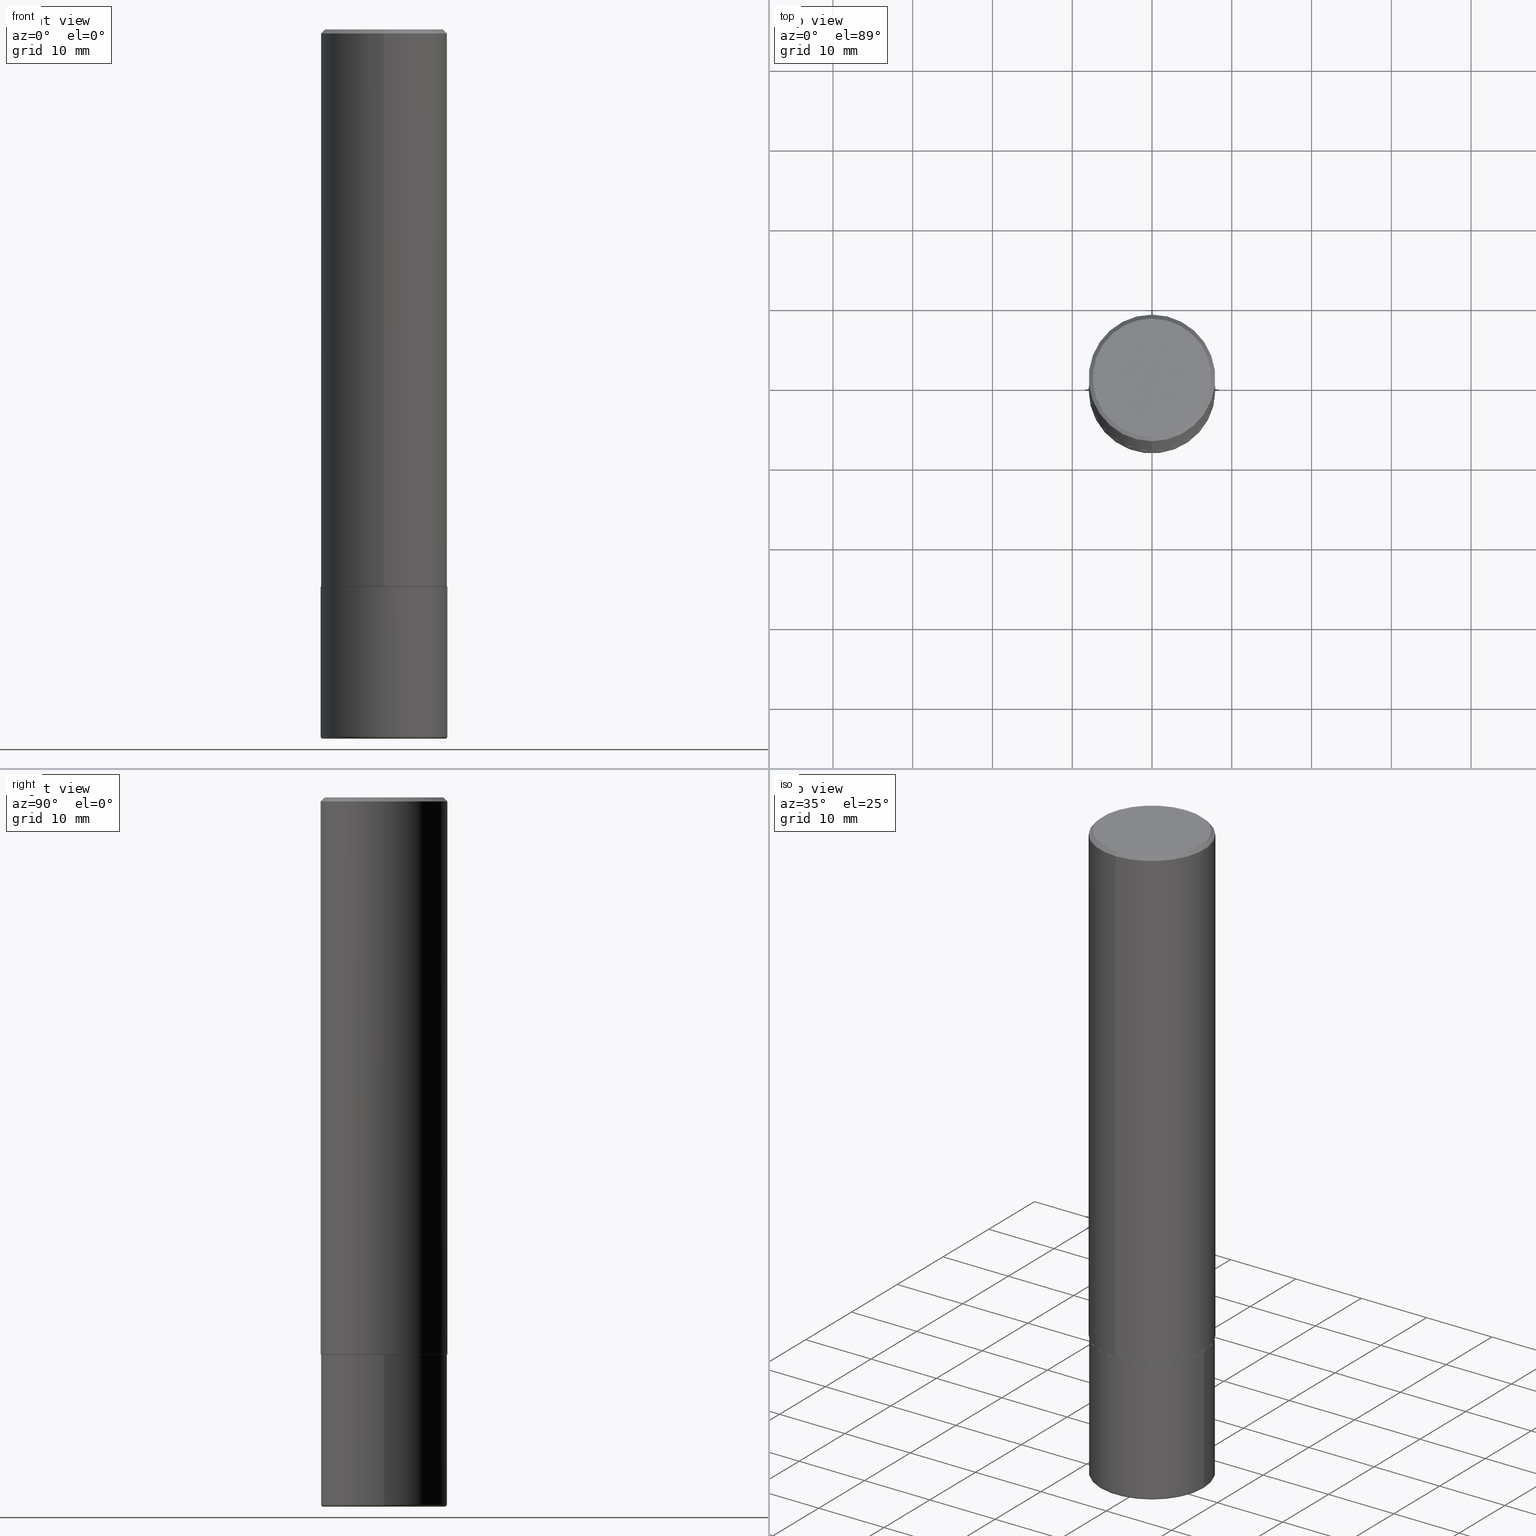
[diagram: canonical four-view strip — front | top / right | iso, engineering-drawing reading convention]
A machine part, canonical four-view strip (front | top / right | iso — engineering-drawing reading convention). The complete STEP part file that produces these views, byte-faithful:
ISO-10303-21;
HEADER;
FILE_DESCRIPTION (( 'STEP AP203' ),
    '1' );
FILE_NAME ('38846.STEP',
    '2024-03-03T16:41:31',
    ( '' ),
    ( '' ),
    'SwSTEP 2.0',
    'SolidWorks 2023',
    '' );
FILE_SCHEMA (( 'CONFIG_CONTROL_DESIGN' ));
ENDSEC;

DATA;
#1 = APPLICATION_CONTEXT ( 'configuration controlled 3d designs of mechanical parts and assemblies' ) ;
#2 = ADVANCED_FACE ( 'NONE', ( #375 ), #371, .F. ) ;
#3 = CARTESIAN_POINT ( 'NONE',  ( 4.889594666967924290E-31, -6.984885851938207279E-17, -0.02000000000000006981 ) ) ;
#4 = EDGE_LOOP ( 'NONE', ( #76, #102, #203, #235 ) ) ;
#5 = DIRECTION ( 'NONE',  ( 6.982962677686265133E-15, 1.000000000000000000, -3.496765431890258103E-15 ) ) ;
#6 = VERTEX_POINT ( 'NONE', #85 ) ;
#7 = AXIS2_PLACEMENT_3D ( 'NONE', #149, #308, #369 ) ;
#8 = ORIENTED_EDGE ( 'NONE', *, *, #227, .F. ) ;
#9 = UNCERTAINTY_MEASURE_WITH_UNIT (LENGTH_MEASURE( 1.000000000000000082E-05 ), #34, 'distance_accuracy_value', 'NONE');
#10 = VERTEX_POINT ( 'NONE', #269 ) ;
#11 = ORIENTED_EDGE ( 'NONE', *, *, #168, .F. ) ;
#12 = COORDINATED_UNIVERSAL_TIME_OFFSET ( 5, 0, .BEHIND. ) ;
#13 = VECTOR ( 'NONE', #257, 39.37007874015748143 ) ;
#14 = ORIENTED_EDGE ( 'NONE', *, *, #144, .F. ) ;
#15 = LOCAL_TIME ( 11, 41, 31.00000000000000000, #207 ) ;
#16 = APPROVAL_DATE_TIME ( #46, #210 ) ;
#17 = PRODUCT_DEFINITION ( 'UNKNOWN', '', #148, #38 ) ;
#18 = FACE_OUTER_BOUND ( 'NONE', #173, .T. ) ;
#19 = APPROVAL_DATE_TIME ( #280, #139 ) ;
#20 = DIRECTION ( 'NONE',  ( -2.445468806185136597E-29, 3.491481338843145583E-15, 1.000000000000000000 ) ) ;
#21 = CALENDAR_DATE ( 2024, 3, 3 ) ;
#22 = DIRECTION ( 'NONE',  ( -6.982962677686266711E-15, -1.000000000000000000, 3.492442925969092226E-15 ) ) ;
#23 = ADVANCED_FACE ( 'NONE', ( #51 ), #306, .T. ) ;
#24 = ADVANCED_FACE ( 'NONE', ( #312 ), #88, .F. ) ;
#25 = DIRECTION ( 'NONE',  ( -6.982962677686266711E-15, -1.000000000000000000, 3.492442925969092620E-15 ) ) ;
#26 = CARTESIAN_POINT ( 'NONE',  ( 2.213340621892779126E-15, 0.3114999999999903957, -2.750000000000000888 ) ) ;
#27 = LINE ( 'NONE', #160, #397 ) ;
#28 = AXIS2_PLACEMENT_3D ( 'NONE', #190, #313, #409 ) ;
#29 = AXIS2_PLACEMENT_3D ( 'NONE', #418, #74, #361 ) ;
#30 = DIRECTION ( 'NONE',  ( -2.444797333483953649E-29, 3.492442925969092226E-15, 1.000000000000000000 ) ) ;
#31 = DIRECTION ( 'NONE',  ( -2.444797333483953649E-29, 3.492442925969092226E-15, 1.000000000000000000 ) ) ;
#32 = CARTESIAN_POINT ( 'NONE',  ( 0.3125000000000000000, -2.182175836776958347E-15, 1.523805242436230075E-29 ) ) ;
#33 = EDGE_CURVE ( 'NONE', #230, #388, #48, .T. ) ;
#34 =( CONVERSION_BASED_UNIT ( 'INCH', #322 ) LENGTH_UNIT ( ) NAMED_UNIT ( #242 ) );
#35 = ORIENTED_EDGE ( 'NONE', *, *, #408, .F. ) ;
#36 = FACE_OUTER_BOUND ( 'NONE', #205, .T. ) ;
#37 = EDGE_LOOP ( 'NONE', ( #138, #415 ) ) ;
#38 = DESIGN_CONTEXT ( 'detailed design', #127, 'design' ) ;
#39 = DIRECTION ( 'NONE',  ( -2.445468806185136597E-29, 3.491481338843145583E-15, 1.000000000000000000 ) ) ;
#40 = EDGE_LOOP ( 'NONE', ( #377, #325, #171, #199 ) ) ;
#41 = CONICAL_SURFACE ( 'NONE', #28, 0.3114999999999999991, 0.7853981633976873100 ) ;
#42 = LOCAL_TIME ( 11, 41, 31.00000000000000000, #344 ) ;
#43 = ORIENTED_EDGE ( 'NONE', *, *, #364, .F. ) ;
#44 = EDGE_LOOP ( 'NONE', ( #366, #78 ) ) ;
#45 = CARTESIAN_POINT ( 'NONE',  ( -2.182175836776958741E-15, -0.3125000000000000555, 1.091388414365341542E-15 ) ) ;
#46 = DATE_AND_TIME ( #251, #15 ) ;
#47 = AXIS2_PLACEMENT_3D ( 'NONE', #61, #315, #354 ) ;
#48 = LINE ( 'NONE', #206, #178 ) ;
#49 = AXIS2_PLACEMENT_3D ( 'NONE', #3, #358, #5 ) ;
#50 = DIRECTION ( 'NONE',  ( 0.000000000000000000, 0.000000000000000000, 1.000000000000000000 ) ) ;
#51 = FACE_OUTER_BOUND ( 'NONE', #40, .T. ) ;
#52 = PERSON_AND_ORGANIZATION_ROLE ( 'design_supplier' ) ;
#53 = ORIENTED_EDGE ( 'NONE', *, *, #260, .T. ) ;
#54 = DIRECTION ( 'NONE',  ( -2.444797333483953649E-29, 3.492442925969092226E-15, 1.000000000000000000 ) ) ;
#55 = EDGE_CURVE ( 'NONE', #360, #362, #197, .T. ) ;
#56 = CALENDAR_DATE ( 2024, 3, 3 ) ;
#57 = LINE ( 'NONE', #45, #381 ) ;
#58 = PERSON_AND_ORGANIZATION ( #329, #305 ) ;
#59 = CIRCLE ( 'NONE', #147, 0.3125000000000002776 ) ;
#60 = CC_DESIGN_SECURITY_CLASSIFICATION ( #133, ( #148 ) ) ;
#61 = CARTESIAN_POINT ( 'NONE',  ( 0.000000000000000000, 0.000000000000000000, 0.000000000000000000 ) ) ;
#62 = PLANE ( 'NONE',  #373 ) ;
#63 = DIRECTION ( 'NONE',  ( -6.982962677686265133E-15, -1.000000000000000000, 3.496765431890258103E-15 ) ) ;
#64 = ORIENTED_EDGE ( 'NONE', *, *, #334, .T. ) ;
#65 = PLANE ( 'NONE',  #91 ) ;
#66 = CARTESIAN_POINT ( 'NONE',  ( 0.000000000000000000, 0.000000000000000000, 0.000000000000000000 ) ) ;
#67 = EDGE_CURVE ( 'NONE', #262, #70, #57, .T. ) ;
#68 = CC_DESIGN_DATE_AND_TIME_ASSIGNMENT ( #156, #370, ( #133 ) ) ;
#69 = CARTESIAN_POINT ( 'NONE',  ( 2.182175836776957558E-15, 0.3124999999999998335, -0.02000000000000116268 ) ) ;
#70 = VERTEX_POINT ( 'NONE', #177 ) ;
#71 = CONICAL_SURFACE ( 'NONE', #258, 0.3124999999999998890, 0.7853981633974469467 ) ;
#72 = LINE ( 'NONE', #324, #417 ) ;
#73 = EDGE_LOOP ( 'NONE', ( #356, #330, #386, #129 ) ) ;
#74 = DIRECTION ( 'NONE',  ( -6.982962677686266711E-15, -1.000000000000000000, 3.491481338843145583E-15 ) ) ;
#75 = ORIENTED_EDGE ( 'NONE', *, *, #55, .F. ) ;
#76 = ORIENTED_EDGE ( 'NONE', *, *, #301, .T. ) ;
#77 = AXIS2_PLACEMENT_3D ( 'NONE', #135, #137, #263 ) ;
#78 = ORIENTED_EDGE ( 'NONE', *, *, #260, .F. ) ;
#79 = CARTESIAN_POINT ( 'NONE',  ( 0.000000000000000000, 0.000000000000000000, 0.000000000000000000 ) ) ;
#80 = APPROVAL_STATUS ( 'not_yet_approved' ) ;
#81 = EDGE_CURVE ( 'NONE', #363, #341, #192, .T. ) ;
#82 = DIRECTION ( 'NONE',  ( -2.444797333483953649E-29, 3.492442925969092226E-15, 1.000000000000000000 ) ) ;
#83 = APPROVAL_STATUS ( 'not_yet_approved' ) ;
#84 = CIRCLE ( 'NONE', #404, 0.3125000000000000000 ) ;
#85 = CARTESIAN_POINT ( 'NONE',  ( -2.175192874099204491E-15, -0.3115000000000096581, -2.749999999999998668 ) ) ;
#86 = AXIS2_PLACEMENT_3D ( 'NONE', #66, #252, #379 ) ;
#87 = ADVANCED_FACE ( 'NONE', ( #208 ), #204, .T. ) ;
#88 = PLANE ( 'NONE',  #346 ) ;
#89 = DIRECTION ( 'NONE',  ( -2.444797333483953649E-29, 3.492442925969092620E-15, 1.000000000000000000 ) ) ;
#90 = CYLINDRICAL_SURFACE ( 'NONE', #47, 0.3125000000000000000 ) ;
#91 = AXIS2_PLACEMENT_3D ( 'NONE', #157, #347, #95 ) ;
#92 = AXIS2_PLACEMENT_3D ( 'NONE', #79, #243, #22 ) ;
#93 = CARTESIAN_POINT ( 'NONE',  ( -2.182175836776892872E-15, -0.3125000000000099365, -2.748999999999999222 ) ) ;
#94 = ADVANCED_FACE ( 'NONE', ( #338 ), #71, .T. ) ;
#95 = DIRECTION ( 'NONE',  ( -1.000000000000000000, 6.982962677686265922E-15, -4.876176775795935793E-29 ) ) ;
#96 = LINE ( 'NONE', #26, #13 ) ;
#97 = AXIS2_PLACEMENT_3D ( 'NONE', #163, #195, #126 ) ;
#98 =( GEOMETRIC_REPRESENTATION_CONTEXT ( 3 ) GLOBAL_UNCERTAINTY_ASSIGNED_CONTEXT ( ( #9 ) ) GLOBAL_UNIT_ASSIGNED_CONTEXT ( ( #34, #402, #274 ) ) REPRESENTATION_CONTEXT ( 'NONE', 'WORKASPACE' ) );
#99 = ADVANCED_FACE ( 'NONE', ( #18 ), #112, .T. ) ;
#100 = CC_DESIGN_PERSON_AND_ORGANIZATION_ASSIGNMENT ( #217, #239, ( #133 ) ) ;
#101 = CARTESIAN_POINT ( 'NONE',  ( 2.220446049250347791E-15, 0.3124999999999906741, -2.749000000000000998 ) ) ;
#102 = ORIENTED_EDGE ( 'NONE', *, *, #216, .T. ) ;
#103 = PRODUCT ( '38846', '38846', '', ( #214 ) ) ;
#104 = DIRECTION ( 'NONE',  ( -6.982962677686265133E-15, -1.000000000000000000, 3.496765431890258103E-15 ) ) ;
#105 = ORIENTED_EDGE ( 'NONE', *, *, #144, .T. ) ;
#106 = CC_DESIGN_APPROVAL ( #210, ( #17 ) ) ;
#107 = CARTESIAN_POINT ( 'NONE',  ( 2.216893335571580419E-15, 0.3114999999999903957, -2.750000000000000888 ) ) ;
#108 = ORIENTED_EDGE ( 'NONE', *, *, #285, .T. ) ;
#109 = EDGE_LOOP ( 'NONE', ( #297, #273 ) ) ;
#110 = ORIENTED_EDGE ( 'NONE', *, *, #81, .F. ) ;
#111 = APPROVAL ( #117, 'UNSPECIFIED' ) ;
#112 = TOROIDAL_SURFACE ( 'NONE', #172, 0.3024999999999999911, 0.009999999999999807654 ) ;
#113 = ADVANCED_FACE ( 'NONE', ( #120 ), #211, .T. ) ;
#114 = CARTESIAN_POINT ( 'NONE',  ( 0.000000000000000000, 0.000000000000000000, 0.000000000000000000 ) ) ;
#115 = APPROVAL_ROLE ( '' ) ;
#116 = DIRECTION ( 'NONE',  ( 1.000000000000000000, -6.982962677686269077E-15, 0.000000000000000000 ) ) ;
#117 = APPROVAL_STATUS ( 'not_yet_approved' ) ;
#118 = FACE_OUTER_BOUND ( 'NONE', #222, .T. ) ;
#119 = PERSON_AND_ORGANIZATION_ROLE ( 'creator' ) ;
#120 = FACE_OUTER_BOUND ( 'NONE', #143, .T. ) ;
#121 = DIRECTION ( 'NONE',  ( 1.000000000000000000, -6.982962677686269077E-15, 0.000000000000000000 ) ) ;
#122 = DATE_AND_TIME ( #56, #42 ) ;
#123 = DIRECTION ( 'NONE',  ( 2.438088387897960049E-29, -3.491481338843145188E-15, -1.000000000000000000 ) ) ;
#124 = DIRECTION ( 'NONE',  ( 1.000000000000000000, -6.982962677686269077E-15, 0.000000000000000000 ) ) ;
#125 = AXIS2_PLACEMENT_3D ( 'NONE', #336, #215, #116 ) ;
#126 = DIRECTION ( 'NONE',  ( -1.000000000000000000, 7.105427357601074434E-15, 0.000000000000000000 ) ) ;
#127 = APPLICATION_CONTEXT ( 'configuration controlled 3d designs of mechanical parts and assemblies' ) ;
#128 = CYLINDRICAL_SURFACE ( 'NONE', #86, 0.3125000000000000000 ) ;
#129 = ORIENTED_EDGE ( 'NONE', *, *, #248, .F. ) ;
#130 = ADVANCED_FACE ( 'NONE', ( #118 ), #184, .T. ) ;
#131 = CARTESIAN_POINT ( 'NONE',  ( 6.720747869747387921E-29, -9.600725603489034077E-15, -2.749000000000000110 ) ) ;
#132 = AXIS2_PLACEMENT_3D ( 'NONE', #114, #82, #401 ) ;
#133 = SECURITY_CLASSIFICATION ( '', '', #151 ) ;
#134 = CARTESIAN_POINT ( 'NONE',  ( -0.3125000000000000000, -8.672975727940299906E-15, -2.750000000000000000 ) ) ;
#135 = CARTESIAN_POINT ( 'NONE',  ( 6.725039217009124520E-29, -9.601573681818649859E-15, -2.750000000000000000 ) ) ;
#136 = ORIENTED_EDGE ( 'NONE', *, *, #216, .F. ) ;
#137 = DIRECTION ( 'NONE',  ( -2.445468806185136597E-29, 3.491481338843145583E-15, 1.000000000000000000 ) ) ;
#138 = ORIENTED_EDGE ( 'NONE', *, *, #380, .T. ) ;
#139 = APPROVAL ( #83, 'UNSPECIFIED' ) ;
#140 = CIRCLE ( 'NONE', #296, 0.3125000000000000000 ) ;
#141 = CC_DESIGN_APPROVAL ( #139, ( #133 ) ) ;
#142 = ORIENTED_EDGE ( 'NONE', *, *, #389, .T. ) ;
#143 = EDGE_LOOP ( 'NONE', ( #136, #212, #234, #267 ) ) ;
#144 = EDGE_CURVE ( 'NONE', #393, #295, #84, .T. ) ;
#145 = CC_DESIGN_DATE_AND_TIME_ASSIGNMENT ( #122, #185, ( #17 ) ) ;
#146 = CALENDAR_DATE ( 2024, 3, 3 ) ;
#147 = AXIS2_PLACEMENT_3D ( 'NONE', #355, #30, #286 ) ;
#148 = PRODUCT_DEFINITION_FORMATION_WITH_SPECIFIED_SOURCE ( 'ANY', '', #103, .NOT_KNOWN. ) ;
#149 = CARTESIAN_POINT ( 'NONE',  ( -1.989649451711856503E-45, 2.842254880443227287E-31, 8.138300154624720232E-17 ) ) ;
#150 = DIRECTION ( 'NONE',  ( -2.445468806185136597E-29, 3.491481338843145583E-15, 1.000000000000000000 ) ) ;
#151 = SECURITY_CLASSIFICATION_LEVEL ( 'unclassified' ) ;
#152 = CARTESIAN_POINT ( 'NONE',  ( 4.889594666967924290E-31, -6.984885851938207279E-17, -0.02000000000000006981 ) ) ;
#153 = COORDINATED_UNIVERSAL_TIME_OFFSET ( 5, 0, .BEHIND. ) ;
#154 = AXIS2_PLACEMENT_3D ( 'NONE', #191, #225, #317 ) ;
#155 = DIRECTION ( 'NONE',  ( -2.445468806185136597E-29, 3.491481338843145583E-15, 1.000000000000000000 ) ) ;
#156 = DATE_AND_TIME ( #309, #237 ) ;
#157 = CARTESIAN_POINT ( 'NONE',  ( 6.725039217009124520E-29, -9.601573681818649859E-15, -2.750000000000000000 ) ) ;
#158 = EDGE_CURVE ( 'NONE', #341, #363, #231, .T. ) ;
#159 = ADVANCED_FACE ( 'NONE', ( #164 ), #90, .T. ) ;
#160 = CARTESIAN_POINT ( 'NONE',  ( 2.182175836776957558E-15, 0.3124999999999998335, -0.02000000000000116268 ) ) ;
#161 = DIRECTION ( 'NONE',  ( -1.000000000000000000, 6.982962677686265922E-15, -4.876176775795935793E-29 ) ) ;
#162 = VECTOR ( 'NONE', #165, 39.37007874015748143 ) ;
#163 = CARTESIAN_POINT ( 'NONE',  ( -0.3024999999999999911, -1.003587809688827154E-14, -3.489999999999999769 ) ) ;
#164 = FACE_OUTER_BOUND ( 'NONE', #196, .T. ) ;
#165 = DIRECTION ( 'NONE',  ( -2.445468806185136877E-29, 3.491481338843145188E-15, 1.000000000000000000 ) ) ;
#166 = CIRCLE ( 'NONE', #405, 0.3024999999999999911 ) ;
#167 = ORIENTED_EDGE ( 'NONE', *, *, #394, .T. ) ;
#168 = EDGE_CURVE ( 'NONE', #341, #70, #410, .T. ) ;
#169 = DIRECTION ( 'NONE',  ( -2.445468806185136877E-29, 3.491481338843145188E-15, 1.000000000000000000 ) ) ;
#170 = VERTEX_POINT ( 'NONE', #385 ) ;
#171 = ORIENTED_EDGE ( 'NONE', *, *, #67, .T. ) ;
#172 = AXIS2_PLACEMENT_3D ( 'NONE', #279, #150, #368 ) ;
#173 = EDGE_LOOP ( 'NONE', ( #395, #53, #64, #14 ) ) ;
#174 = ADVANCED_FACE ( 'NONE', ( #383 ), #65, .F. ) ;
#175 = CC_DESIGN_PERSON_AND_ORGANIZATION_ASSIGNMENT ( #398, #52, ( #148 ) ) ;
#176 = EDGE_LOOP ( 'NONE', ( #266, #256 ) ) ;
#177 = CARTESIAN_POINT ( 'NONE',  ( -2.143905624303602036E-15, -0.3124999999999999445, -0.01999999999999897693 ) ) ;
#178 = VECTOR ( 'NONE', #89, 39.37007874015748143 ) ;
#179 = CIRCLE ( 'NONE', #77, 0.3125000000000000000 ) ;
#180 = CARTESIAN_POINT ( 'NONE',  ( 8.534686133586126543E-29, -1.218526987256257612E-14, -3.489999999999999769 ) ) ;
#181 = PERSON_AND_ORGANIZATION_ROLE ( 'design_owner' ) ;
#182 = DIRECTION ( 'NONE',  ( 6.982962677686265922E-15, 1.000000000000000000, -3.492442925969092620E-15 ) ) ;
#183 = COORDINATED_UNIVERSAL_TIME_OFFSET ( 5, 0, .BEHIND. ) ;
#184 = CYLINDRICAL_SURFACE ( 'NONE', #92, 0.3125000000000000555 ) ;
#185 = DATE_TIME_ROLE ( 'creation_date' ) ;
#186 = AXIS2_PLACEMENT_3D ( 'NONE', #131, #219, #255 ) ;
#187 = CARTESIAN_POINT ( 'NONE',  ( 8.534686133586126543E-29, -1.218526987256257612E-14, -3.489999999999999769 ) ) ;
#188 = EDGE_CURVE ( 'NONE', #230, #262, #321, .T. ) ;
#189 = EDGE_CURVE ( 'NONE', #6, #262, #384, .T. ) ;
#190 = CARTESIAN_POINT ( 'NONE',  ( 6.723192667080871976E-29, -9.604218046415003522E-15, -2.750000000000000000 ) ) ;
#191 = CARTESIAN_POINT ( 'NONE',  ( 6.723192667080871976E-29, -9.604218046415003522E-15, -2.750000000000000000 ) ) ;
#192 = CIRCLE ( 'NONE', #7, 0.2924999999999997602 ) ;
#193 = CIRCLE ( 'NONE', #359, 0.3114999999999999991 ) ;
#194 = DIRECTION ( 'NONE',  ( -4.937700262165728178E-15, -0.7071067811867141062, 0.7071067811863809283 ) ) ;
#195 = DIRECTION ( 'NONE',  ( 7.105427357601001859E-15, 1.000000000000000000, -3.491481338843145583E-15 ) ) ;
#196 = EDGE_LOOP ( 'NONE', ( #294, #105, #351, #75 ) ) ;
#197 = CIRCLE ( 'NONE', #125, 0.3125000000000000000 ) ;
#198 = CARTESIAN_POINT ( 'NONE',  ( 4.889594666967924290E-31, -6.984885851938207279E-17, -0.02000000000000006981 ) ) ;
#199 = ORIENTED_EDGE ( 'NONE', *, *, #285, .F. ) ;
#200 = CARTESIAN_POINT ( 'NONE',  ( -2.075300644325886704E-15, -0.2924999999999997602, 1.102922557392206019E-15 ) ) ;
#201 = ORIENTED_EDGE ( 'NONE', *, *, #380, .F. ) ;
#202 = ADVANCED_FACE ( 'NONE', ( #287 ), #41, .T. ) ;
#203 = ORIENTED_EDGE ( 'NONE', *, *, #319, .F. ) ;
#204 = TOROIDAL_SURFACE ( 'NONE', #352, 0.3024999999999999911, 0.009999999999999807654 ) ;
#205 = EDGE_LOOP ( 'NONE', ( #11, #110, #392, #108 ) ) ;
#206 = CARTESIAN_POINT ( 'NONE',  ( 2.220446049250313081E-15, 0.3125000000000000555, -1.091388414365341542E-15 ) ) ;
#207 = COORDINATED_UNIVERSAL_TIME_OFFSET ( 5, 0, .BEHIND. ) ;
#208 = FACE_OUTER_BOUND ( 'NONE', #264, .T. ) ;
#209 = PERSON_AND_ORGANIZATION ( #329, #305 ) ;
#210 = APPROVAL ( #80, 'UNSPECIFIED' ) ;
#211 = CONICAL_SURFACE ( 'NONE', #304, 0.3114999999999999991, 0.7853981633976873100 ) ;
#212 = ORIENTED_EDGE ( 'NONE', *, *, #348, .T. ) ;
#213 = DIRECTION ( 'NONE',  ( -2.444797333483953649E-29, 3.492442925969092620E-15, 1.000000000000000000 ) ) ;
#214 = MECHANICAL_CONTEXT ( 'NONE', #1, 'mechanical' ) ;
#215 = DIRECTION ( 'NONE',  ( -2.445468806185136597E-29, 3.491481338843145583E-15, 1.000000000000000000 ) ) ;
#216 = EDGE_CURVE ( 'NONE', #406, #230, #96, .T. ) ;
#217 = PERSON_AND_ORGANIZATION ( #329, #305 ) ;
#218 = CIRCLE ( 'NONE', #278, 0.3124999999999998890 ) ;
#219 = DIRECTION ( 'NONE',  ( -2.444797333483953649E-29, 3.492442925969092226E-15, 1.000000000000000000 ) ) ;
#220 = CARTESIAN_POINT ( 'NONE',  ( 4.889594666967924290E-31, -6.984885851938207279E-17, -0.02000000000000006981 ) ) ;
#221 = CARTESIAN_POINT ( 'NONE',  ( 1.297351265854343644E-28, -5.898552965075025237E-15, -3.499999999999999112 ) ) ;
#222 = EDGE_LOOP ( 'NONE', ( #236, #332, #43, #268 ) ) ;
#223 = DIRECTION ( 'NONE',  ( -2.444797333483953649E-29, 3.492442925969092226E-15, 1.000000000000000000 ) ) ;
#224 = AXIS2_PLACEMENT_3D ( 'NONE', #250, #223, #25 ) ;
#225 = DIRECTION ( 'NONE',  ( -2.444797333483953649E-29, 3.492442925969092226E-15, 1.000000000000000000 ) ) ;
#226 =( LENGTH_UNIT ( ) NAMED_UNIT ( * ) SI_UNIT ( $, .METRE. ) );
#227 = EDGE_CURVE ( 'NONE', #295, #393, #140, .T. ) ;
#228 = CC_DESIGN_PERSON_AND_ORGANIZATION_ASSIGNMENT ( #247, #181, ( #103 ) ) ;
#229 = DIRECTION ( 'NONE',  ( -6.982962677686265922E-15, -1.000000000000000000, 3.507991003100177457E-15 ) ) ;
#230 = VERTEX_POINT ( 'NONE', #101 ) ;
#231 = CIRCLE ( 'NONE', #224, 0.2924999999999997602 ) ;
#232 = AXIS2_PLACEMENT_3D ( 'NONE', #198, #327, #104 ) ;
#233 = LINE ( 'NONE', #32, #162 ) ;
#234 = ORIENTED_EDGE ( 'NONE', *, *, #189, .T. ) ;
#235 = ORIENTED_EDGE ( 'NONE', *, *, #189, .F. ) ;
#236 = ORIENTED_EDGE ( 'NONE', *, *, #319, .T. ) ;
#237 = LOCAL_TIME ( 11, 41, 31.00000000000000000, #183 ) ;
#238 = DIRECTION ( 'NONE',  ( 1.000000000000000000, -6.982962677686267499E-15, 4.883557194083112901E-29 ) ) ;
#239 = PERSON_AND_ORGANIZATION_ROLE ( 'classification_officer' ) ;
#240 = DIRECTION ( 'NONE',  ( -2.444797333483953089E-29, 3.492442925969092620E-15, 1.000000000000000000 ) ) ;
#241 = DATE_AND_TIME ( #146, #246 ) ;
#242 = DIMENSIONAL_EXPONENTS ( 1.000000000000000000, 0.000000000000000000, 0.000000000000000000, 0.000000000000000000, 0.000000000000000000, 0.000000000000000000, 0.000000000000000000 ) ;
#243 = DIRECTION ( 'NONE',  ( -2.444797333483953649E-29, 3.492442925969092226E-15, 1.000000000000000000 ) ) ;
#244 = APPLICATION_PROTOCOL_DEFINITION ( 'international standard', 'config_control_design', 1994, #127 ) ;
#245 = CIRCLE ( 'NONE', #97, 0.009999999999999790307 ) ;
#246 = LOCAL_TIME ( 11, 41, 31.00000000000000000, #12 ) ;
#247 = PERSON_AND_ORGANIZATION ( #329, #305 ) ;
#248 = EDGE_CURVE ( 'NONE', #363, #388, #27, .T. ) ;
#249 = CC_DESIGN_PERSON_AND_ORGANIZATION_ASSIGNMENT ( #400, #119, ( #17 ) ) ;
#250 = CARTESIAN_POINT ( 'NONE',  ( -1.989649451711856503E-45, 2.842254880443227287E-31, 8.138300154624720232E-17 ) ) ;
#251 = CALENDAR_DATE ( 2024, 3, 3 ) ;
#252 = DIRECTION ( 'NONE',  ( -2.445468806185136597E-29, 3.491481338843145583E-15, 1.000000000000000000 ) ) ;
#253 = DIRECTION ( 'NONE',  ( -2.445468806185136597E-29, 3.491481338843145583E-15, 1.000000000000000000 ) ) ;
#254 = CARTESIAN_POINT ( 'NONE',  ( 8.534686133586126543E-29, -1.218526987256257612E-14, -3.489999999999999769 ) ) ;
#255 = DIRECTION ( 'NONE',  ( -6.982962677686265922E-15, -1.000000000000000000, 3.496765431890253764E-15 ) ) ;
#256 = ORIENTED_EDGE ( 'NONE', *, *, #348, .F. ) ;
#257 = DIRECTION ( 'NONE',  ( 5.024295867789263036E-15, 0.7071067811867189912, 0.7071067811863760433 ) ) ;
#258 = AXIS2_PLACEMENT_3D ( 'NONE', #152, #345, #277 ) ;
#259 = CIRCLE ( 'NONE', #232, 0.3124999999999998890 ) ;
#260 = EDGE_CURVE ( 'NONE', #10, #170, #357, .T. ) ;
#261 = DIRECTION ( 'NONE',  ( 1.000000000000000000, -6.982962677686267499E-15, 0.000000000000000000 ) ) ;
#262 = VERTEX_POINT ( 'NONE', #93 ) ;
#263 = DIRECTION ( 'NONE',  ( 1.000000000000000000, -6.982962677686269077E-15, 0.000000000000000000 ) ) ;
#264 = EDGE_LOOP ( 'NONE', ( #167, #291, #8, #328 ) ) ;
#265 = CARTESIAN_POINT ( 'NONE',  ( 0.3125000000000000000, -1.178374951859560978E-14, -2.750000000000000000 ) ) ;
#266 = ORIENTED_EDGE ( 'NONE', *, *, #301, .F. ) ;
#267 = ORIENTED_EDGE ( 'NONE', *, *, #188, .F. ) ;
#268 = ORIENTED_EDGE ( 'NONE', *, *, #67, .F. ) ;
#269 = CARTESIAN_POINT ( 'NONE',  ( -0.3024999999999999911, -1.001780836679448390E-14, -3.499999999999999112 ) ) ;
#270 = DIRECTION ( 'NONE',  ( 1.000000000000000000, 0.000000000000000000, 0.000000000000000000 ) ) ;
#271 = VECTOR ( 'NONE', #281, 39.37007874015748143 ) ;
#272 = AXIS2_PLACEMENT_3D ( 'NONE', #396, #240, #310 ) ;
#273 = ORIENTED_EDGE ( 'NONE', *, *, #158, .T. ) ;
#274 =( NAMED_UNIT ( * ) SI_UNIT ( $, .STERADIAN. ) SOLID_ANGLE_UNIT ( ) );
#275 = DIRECTION ( 'NONE',  ( -6.982962677686265922E-15, -1.000000000000000000, 3.507991003100177457E-15 ) ) ;
#276 = PERSON_AND_ORGANIZATION_ROLE ( 'creator' ) ;
#277 = DIRECTION ( 'NONE',  ( 6.982962677686265133E-15, 1.000000000000000000, -3.496765431890258103E-15 ) ) ;
#278 = AXIS2_PLACEMENT_3D ( 'NONE', #220, #31, #63 ) ;
#279 = CARTESIAN_POINT ( 'NONE',  ( 8.534686133586126543E-29, -1.218526987256257612E-14, -3.489999999999999769 ) ) ;
#280 = DATE_AND_TIME ( #21, #391 ) ;
#281 = DIRECTION ( 'NONE',  ( -4.851104656540957175E-15, -0.7071067811865490160, -0.7071067811865460184 ) ) ;
#282 = CARTESIAN_POINT ( 'NONE',  ( 8.559140821647976968E-29, -1.222018468595100619E-14, -3.499999999999999112 ) ) ;
#283 = VECTOR ( 'NONE', #194, 39.37007874015748143 ) ;
#284 = CARTESIAN_POINT ( 'NONE',  ( -2.175192874099204491E-15, -0.3115000000000096581, -2.749999999999998668 ) ) ;
#285 = EDGE_CURVE ( 'NONE', #388, #70, #218, .T. ) ;
#286 = DIRECTION ( 'NONE',  ( -6.982962677686265922E-15, -1.000000000000000000, 3.496765431890253764E-15 ) ) ;
#287 = FACE_OUTER_BOUND ( 'NONE', #4, .T. ) ;
#288 = ADVANCED_FACE ( 'NONE', ( #416 ), #62, .T. ) ;
#289 = CLOSED_SHELL ( 'NONE', ( #333, #87, #174, #159, #99, #288 ) ) ;
#290 = CARTESIAN_POINT ( 'NONE',  ( 6.723192667080871976E-29, -9.604218046415003522E-15, -2.750000000000000000 ) ) ;
#291 = ORIENTED_EDGE ( 'NONE', *, *, #300, .T. ) ;
#292 = CARTESIAN_POINT ( 'NONE',  ( -0.3124999999999998890, -9.964823823312263034E-15, -3.489999999999999769 ) ) ;
#293 = PRODUCT_DEFINITION_SHAPE ( 'NONE', 'NONE',  #17 ) ;
#294 = ORIENTED_EDGE ( 'NONE', *, *, #389, .F. ) ;
#295 = VERTEX_POINT ( 'NONE', #413 ) ;
#296 = AXIS2_PLACEMENT_3D ( 'NONE', #254, #350, #124 ) ;
#297 = ORIENTED_EDGE ( 'NONE', *, *, #81, .T. ) ;
#298 = EDGE_LOOP ( 'NONE', ( #323, #142, #201, #35 ) ) ;
#299 = APPROVAL_ROLE ( '' ) ;
#300 = EDGE_CURVE ( 'NONE', #10, #393, #245, .T. ) ;
#301 = EDGE_CURVE ( 'NONE', #6, #406, #331, .T. ) ;
#302 = DIRECTION ( 'NONE',  ( 2.444797333483953089E-29, -3.492442925969092620E-15, -1.000000000000000000 ) ) ;
#303 = APPROVAL_DATE_TIME ( #241, #111 ) ;
#304 = AXIS2_PLACEMENT_3D ( 'NONE', #343, #54, #275 ) ;
#305 = ORGANIZATION ( 'UNSPECIFIED', 'UNSPECIFIED', '' ) ;
#306 = CYLINDRICAL_SURFACE ( 'NONE', #132, 0.3125000000000000555 ) ;
#307 = APPROVAL_ROLE ( '' ) ;
#308 = DIRECTION ( 'NONE',  ( -2.444797333483953649E-29, 3.492442925969092226E-15, 1.000000000000000000 ) ) ;
#309 = CALENDAR_DATE ( 2024, 3, 3 ) ;
#310 = DIRECTION ( 'NONE',  ( -6.982962677686265922E-15, -1.000000000000000000, 3.492442925969092620E-15 ) ) ;
#311 = AXIS2_PLACEMENT_3D ( 'NONE', #337, #50, #270 ) ;
#312 = FACE_OUTER_BOUND ( 'NONE', #109, .T. ) ;
#313 = DIRECTION ( 'NONE',  ( -2.444797333483953649E-29, 3.492442925969092226E-15, 1.000000000000000000 ) ) ;
#314 = CC_DESIGN_PERSON_AND_ORGANIZATION_ASSIGNMENT ( #209, #276, ( #148 ) ) ;
#315 = DIRECTION ( 'NONE',  ( -2.445468806185136597E-29, 3.491481338843145583E-15, 1.000000000000000000 ) ) ;
#316 = APPROVAL_PERSON_ORGANIZATION ( #342, #111, #299 ) ;
#317 = DIRECTION ( 'NONE',  ( -6.982962677686265922E-15, -1.000000000000000000, 3.507991003100177457E-15 ) ) ;
#318 = DIRECTION ( 'NONE',  ( 4.937700262164540942E-15, 0.7071067811865441310, -0.7071067811865509034 ) ) ;
#319 = EDGE_CURVE ( 'NONE', #262, #230, #59, .T. ) ;
#320 = CARTESIAN_POINT ( 'NONE',  ( 2.112346210000094260E-15, 0.2924999999999997602, -9.401565542997115154E-16 ) ) ;
#321 = CIRCLE ( 'NONE', #186, 0.3125000000000002776 ) ;
#322 = LENGTH_MEASURE_WITH_UNIT ( LENGTH_MEASURE( 0.02539999999999999897 ), #226 );
#323 = ORIENTED_EDGE ( 'NONE', *, *, #227, .T. ) ;
#324 = CARTESIAN_POINT ( 'NONE',  ( -0.3125000000000000000, 2.220446049250313081E-15, -1.537167215704658232E-29 ) ) ;
#325 = ORIENTED_EDGE ( 'NONE', *, *, #188, .T. ) ;
#326 = MANIFOLD_SOLID_BREP ( 'Body-Move/Copy2[2]', #411 ) ;
#327 = DIRECTION ( 'NONE',  ( -2.444797333483953649E-29, 3.492442925969092226E-15, 1.000000000000000000 ) ) ;
#328 = ORIENTED_EDGE ( 'NONE', *, *, #334, .F. ) ;
#329 = PERSON ( 'UNSPECIFIED', 'UNSPECIFIED', 'UNSPECIFIED', ('UNSPECIFIED'), ('UNSPECIFIED'), ('UNSPECIFIED') ) ;
#330 = ORIENTED_EDGE ( 'NONE', *, *, #168, .T. ) ;
#331 = CIRCLE ( 'NONE', #154, 0.3114999999999999991 ) ;
#332 = ORIENTED_EDGE ( 'NONE', *, *, #33, .T. ) ;
#333 = ADVANCED_FACE ( 'NONE', ( #414 ), #128, .T. ) ;
#334 = EDGE_CURVE ( 'NONE', #170, #295, #340, .T. ) ;
#335 = MANIFOLD_SOLID_BREP ( 'Body-Move/Copy2[1]', #289 ) ;
#336 = CARTESIAN_POINT ( 'NONE',  ( 6.725039217009124520E-29, -9.601573681818649859E-15, -2.750000000000000000 ) ) ;
#337 = CARTESIAN_POINT ( 'NONE',  ( 0.000000000000000000, 0.000000000000000000, 0.000000000000000000 ) ) ;
#338 = FACE_OUTER_BOUND ( 'NONE', #73, .T. ) ;
#339 = AXIS2_PLACEMENT_3D ( 'NONE', #282, #253, #382 ) ;
#340 = CIRCLE ( 'NONE', #29, 0.009999999999999790307 ) ;
#341 = VERTEX_POINT ( 'NONE', #200 ) ;
#342 = PERSON_AND_ORGANIZATION ( #329, #305 ) ;
#343 = CARTESIAN_POINT ( 'NONE',  ( 6.723192667080871976E-29, -9.604218046415003522E-15, -2.750000000000000000 ) ) ;
#344 = COORDINATED_UNIVERSAL_TIME_OFFSET ( 5, 0, .BEHIND. ) ;
#345 = DIRECTION ( 'NONE',  ( 2.444797333483953649E-29, -3.492442925969092226E-15, -1.000000000000000000 ) ) ;
#346 = AXIS2_PLACEMENT_3D ( 'NONE', #399, #302, #182 ) ;
#347 = DIRECTION ( 'NONE',  ( 2.438088387897960049E-29, -3.491481338843145188E-15, -1.000000000000000000 ) ) ;
#348 = EDGE_CURVE ( 'NONE', #406, #6, #193, .T. ) ;
#349 = CARTESIAN_POINT ( 'NONE',  ( -2.143905624303602036E-15, -0.3124999999999999445, -0.01999999999999897693 ) ) ;
#350 = DIRECTION ( 'NONE',  ( -2.445468806185136597E-29, 3.491481338843145583E-15, 1.000000000000000000 ) ) ;
#351 = ORIENTED_EDGE ( 'NONE', *, *, #408, .T. ) ;
#352 = AXIS2_PLACEMENT_3D ( 'NONE', #180, #20, #238 ) ;
#353 = CONICAL_SURFACE ( 'NONE', #49, 0.3124999999999998890, 0.7853981633974469467 ) ;
#354 = DIRECTION ( 'NONE',  ( 1.000000000000000000, -6.982962677686266711E-15, 4.876176775795936353E-29 ) ) ;
#355 = CARTESIAN_POINT ( 'NONE',  ( 6.720747869747387921E-29, -9.600725603489034077E-15, -2.749000000000000110 ) ) ;
#356 = ORIENTED_EDGE ( 'NONE', *, *, #158, .F. ) ;
#357 = CIRCLE ( 'NONE', #339, 0.3024999999999999911 ) ;
#358 = DIRECTION ( 'NONE',  ( 2.444797333483953649E-29, -3.492442925969092226E-15, -1.000000000000000000 ) ) ;
#359 = AXIS2_PLACEMENT_3D ( 'NONE', #290, #387, #229 ) ;
#360 = VERTEX_POINT ( 'NONE', #134 ) ;
#361 = DIRECTION ( 'NONE',  ( 1.000000000000000000, -6.982962677686284854E-15, 0.000000000000000000 ) ) ;
#362 = VERTEX_POINT ( 'NONE', #265 ) ;
#363 = VERTEX_POINT ( 'NONE', #320 ) ;
#364 = EDGE_CURVE ( 'NONE', #70, #388, #259, .T. ) ;
#365 = ADVANCED_FACE ( 'NONE', ( #36 ), #353, .T. ) ;
#366 = ORIENTED_EDGE ( 'NONE', *, *, #394, .F. ) ;
#367 = APPROVAL_PERSON_ORGANIZATION ( #58, #139, #307 ) ;
#368 = DIRECTION ( 'NONE',  ( 1.000000000000000000, -6.982962677686267499E-15, 4.883557194083112901E-29 ) ) ;
#369 = DIRECTION ( 'NONE',  ( -6.982962677686266711E-15, -1.000000000000000000, 3.492442925969092620E-15 ) ) ;
#370 = DATE_TIME_ROLE ( 'classification_date' ) ;
#371 = PLANE ( 'NONE',  #272 ) ;
#372 = APPLICATION_PROTOCOL_DEFINITION ( 'international standard', 'config_control_design', 1994, #1 ) ;
#373 = AXIS2_PLACEMENT_3D ( 'NONE', #221, #123, #161 ) ;
#374 = CC_DESIGN_APPROVAL ( #111, ( #148 ) ) ;
#375 = FACE_OUTER_BOUND ( 'NONE', #176, .T. ) ;
#376 = PERSON_AND_ORGANIZATION ( #329, #305 ) ;
#377 = ORIENTED_EDGE ( 'NONE', *, *, #33, .F. ) ;
#378 = PRODUCT_RELATED_PRODUCT_CATEGORY ( 'detail', '', ( #103 ) ) ;
#379 = DIRECTION ( 'NONE',  ( 1.000000000000000000, -6.982962677686266711E-15, 4.876176775795936353E-29 ) ) ;
#380 = EDGE_CURVE ( 'NONE', #362, #360, #179, .T. ) ;
#381 = VECTOR ( 'NONE', #213, 39.37007874015748143 ) ;
#382 = DIRECTION ( 'NONE',  ( 1.000000000000000000, -6.982962677686267499E-15, 0.000000000000000000 ) ) ;
#383 = FACE_OUTER_BOUND ( 'NONE', #37, .T. ) ;
#384 = LINE ( 'NONE', #284, #283 ) ;
#385 = CARTESIAN_POINT ( 'NONE',  ( 0.3024999999999999911, -1.433253089595110124E-14, -3.499999999999999112 ) ) ;
#386 = ORIENTED_EDGE ( 'NONE', *, *, #364, .T. ) ;
#387 = DIRECTION ( 'NONE',  ( -2.444797333483953649E-29, 3.492442925969092226E-15, 1.000000000000000000 ) ) ;
#388 = VERTEX_POINT ( 'NONE', #69 ) ;
#389 = EDGE_CURVE ( 'NONE', #393, #360, #72, .T. ) ;
#390 = CARTESIAN_POINT ( 'NONE',  ( 8.559140821647976968E-29, -1.222018468595100619E-14, -3.499999999999999112 ) ) ;
#391 = LOCAL_TIME ( 11, 41, 31.00000000000000000, #153 ) ;
#392 = ORIENTED_EDGE ( 'NONE', *, *, #248, .T. ) ;
#393 = VERTEX_POINT ( 'NONE', #292 ) ;
#394 = EDGE_CURVE ( 'NONE', #170, #10, #166, .T. ) ;
#395 = ORIENTED_EDGE ( 'NONE', *, *, #300, .F. ) ;
#396 = CARTESIAN_POINT ( 'NONE',  ( 6.723192667080871976E-29, -9.604218046415003522E-15, -2.750000000000000000 ) ) ;
#397 = VECTOR ( 'NONE', #318, 39.37007874015748143 ) ;
#398 = PERSON_AND_ORGANIZATION ( #329, #305 ) ;
#399 = CARTESIAN_POINT ( 'NONE',  ( 2.042516583223231356E-15, 0.2924999999999997602, -9.808480550728350426E-16 ) ) ;
#400 = PERSON_AND_ORGANIZATION ( #329, #305 ) ;
#401 = DIRECTION ( 'NONE',  ( -6.982962677686266711E-15, -1.000000000000000000, 3.492442925969092226E-15 ) ) ;
#402 =( NAMED_UNIT ( * ) PLANE_ANGLE_UNIT ( ) SI_UNIT ( $, .RADIAN. ) );
#403 = ADVANCED_BREP_SHAPE_REPRESENTATION ( '38846', ( #335, #326, #311 ), #98 ) ;
#404 = AXIS2_PLACEMENT_3D ( 'NONE', #187, #155, #121 ) ;
#405 = AXIS2_PLACEMENT_3D ( 'NONE', #390, #39, #261 ) ;
#406 = VERTEX_POINT ( 'NONE', #107 ) ;
#407 = SHAPE_DEFINITION_REPRESENTATION ( #293, #403 ) ;
#408 = EDGE_CURVE ( 'NONE', #295, #362, #233, .T. ) ;
#409 = DIRECTION ( 'NONE',  ( -6.982962677686265922E-15, -1.000000000000000000, 3.507991003100177457E-15 ) ) ;
#410 = LINE ( 'NONE', #349, #271 ) ;
#411 = CLOSED_SHELL ( 'NONE', ( #202, #130, #94, #365, #23, #113, #2, #24 ) ) ;
#412 = APPROVAL_PERSON_ORGANIZATION ( #376, #210, #115 ) ;
#413 = CARTESIAN_POINT ( 'NONE',  ( 0.3124999999999998890, -1.436744570933953446E-14, -3.489999999999999769 ) ) ;
#414 = FACE_OUTER_BOUND ( 'NONE', #298, .T. ) ;
#415 = ORIENTED_EDGE ( 'NONE', *, *, #55, .T. ) ;
#416 = FACE_OUTER_BOUND ( 'NONE', #44, .T. ) ;
#417 = VECTOR ( 'NONE', #169, 39.37007874015748143 ) ;
#418 = CARTESIAN_POINT ( 'NONE',  ( 0.3024999999999999911, -1.429761608256267116E-14, -3.489999999999999769 ) ) ;
ENDSEC;
END-ISO-10303-21;
